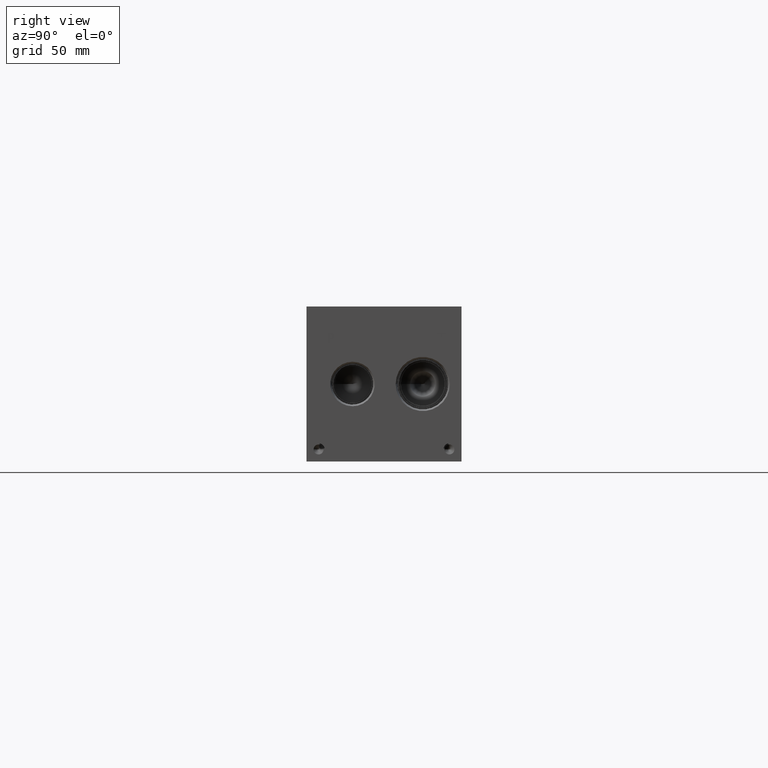
[diagram: clean part render]
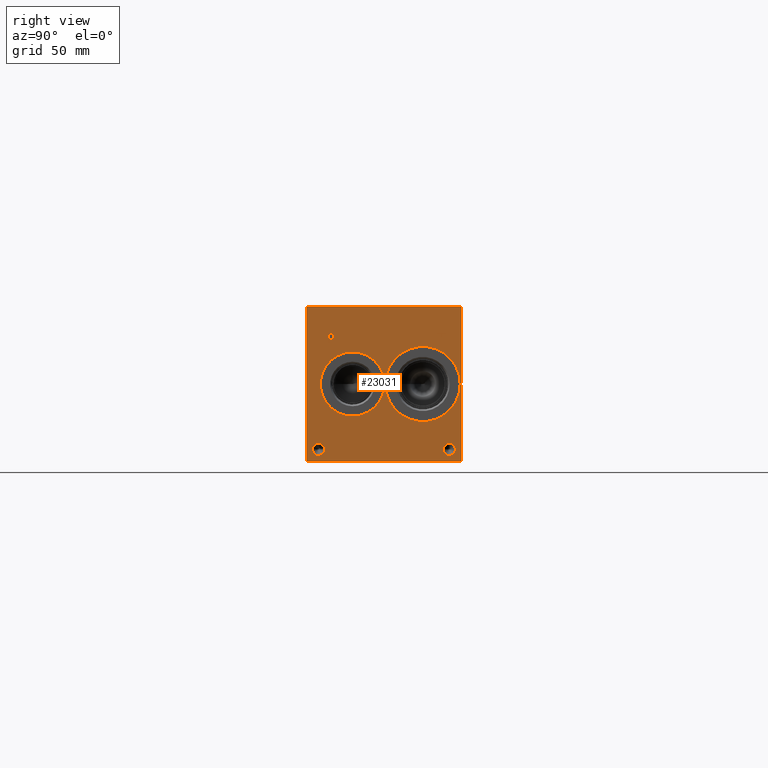
[diagram: same view with one face highlighted and labeled with its STEP entity id]
A machine part, right view. The second image highlights one B-rep face of the part: STEP entity #23031.
In plain terms, the highlighted planar face has unit normal (1, 0, 0).
Its self-contained STEP definition (entity closure, byte-faithful):
#724=CIRCLE('',#24184,24.5618);
#725=CIRCLE('',#24185,24.5618);
#726=CIRCLE('',#24186,21.0185);
#727=CIRCLE('',#24187,21.0185);
#728=CIRCLE('',#24188,3.9624);
#729=CIRCLE('',#24189,3.9624);
#730=CIRCLE('',#24190,3.9624);
#731=CIRCLE('',#24191,3.9624);
#1904=B_SPLINE_CURVE_WITH_KNOTS('',2,(#36069,#36070,#36071,#36072),
 .UNSPECIFIED.,.F.,.F.,(3,1,3),(0.,1.,2.),.UNSPECIFIED.);
#1906=B_SPLINE_CURVE_WITH_KNOTS('',2,(#36090,#36091,#36092,#36093),
 .UNSPECIFIED.,.F.,.F.,(3,1,3),(0.,1.,2.),.UNSPECIFIED.);
#1908=B_SPLINE_CURVE_WITH_KNOTS('',2,(#36139,#36140,#36141,#36142),
 .UNSPECIFIED.,.F.,.F.,(3,1,3),(0.,1.,2.),.UNSPECIFIED.);
#1910=B_SPLINE_CURVE_WITH_KNOTS('',2,(#36157,#36158,#36159,#36160),
 .UNSPECIFIED.,.F.,.F.,(3,1,3),(0.,1.,2.),.UNSPECIFIED.);
#2165=FACE_BOUND('',#4090,.T.);
#2166=FACE_BOUND('',#4091,.T.);
#2167=FACE_BOUND('',#4092,.T.);
#2168=FACE_BOUND('',#4093,.T.);
#2169=FACE_BOUND('',#4094,.T.);
#2170=FACE_BOUND('',#4095,.T.);
#2765=FACE_OUTER_BOUND('',#4089,.T.);
#4089=EDGE_LOOP('',(#17071,#17072,#17073,#17074));
#4090=EDGE_LOOP('',(#17075,#17076));
#4091=EDGE_LOOP('',(#17077,#17078));
#4092=EDGE_LOOP('',(#17079,#17080));
#4093=EDGE_LOOP('',(#17081,#17082));
#4094=EDGE_LOOP('',(#17083,#17084,#17085,#17086,#17087,#17088,#17089,#17090));
#4095=EDGE_LOOP('',(#17091,#17092,#17093,#17094,#17095,#17096,#17097,#17098,
#17099));
#5156=LINE('',#31435,#7083);
#6032=LINE('',#36102,#7959);
#6035=LINE('',#36108,#7962);
#6038=LINE('',#36114,#7965);
#6041=LINE('',#36120,#7968);
#6044=LINE('',#36126,#7971);
#6048=LINE('',#36168,#7975);
#6049=LINE('',#36170,#7976);
#6050=LINE('',#36171,#7977);
#6051=LINE('',#36190,#7978);
#6052=LINE('',#36192,#7979);
#6053=LINE('',#36194,#7980);
#6054=LINE('',#36196,#7981);
#6055=LINE('',#36198,#7982);
#6056=LINE('',#36200,#7983);
#6057=LINE('',#36202,#7984);
#6058=LINE('',#36203,#7985);
#7083=VECTOR('',#25799,10.);
#7959=VECTOR('',#27227,10.);
#7962=VECTOR('',#27232,10.);
#7965=VECTOR('',#27237,10.);
#7968=VECTOR('',#27242,10.);
#7971=VECTOR('',#27247,10.);
#7975=VECTOR('',#27255,10.);
#7976=VECTOR('',#27256,10.);
#7977=VECTOR('',#27257,10.);
#7978=VECTOR('',#27274,10.);
#7979=VECTOR('',#27275,10.);
#7980=VECTOR('',#27276,10.);
#7981=VECTOR('',#27277,10.);
#7982=VECTOR('',#27278,10.);
#7983=VECTOR('',#27279,10.);
#7984=VECTOR('',#27280,10.);
#7985=VECTOR('',#27281,10.);
#8999=VERTEX_POINT('',#31432);
#9000=VERTEX_POINT('',#31434);
#9901=VERTEX_POINT('',#36067);
#9902=VERTEX_POINT('',#36068);
#9905=VERTEX_POINT('',#36089);
#9907=VERTEX_POINT('',#36101);
#9909=VERTEX_POINT('',#36107);
#9911=VERTEX_POINT('',#36113);
#9913=VERTEX_POINT('',#36119);
#9915=VERTEX_POINT('',#36125);
#9917=VERTEX_POINT('',#36138);
#9919=VERTEX_POINT('',#36167);
#9920=VERTEX_POINT('',#36169);
#9921=VERTEX_POINT('',#36172);
#9922=VERTEX_POINT('',#36173);
#9923=VERTEX_POINT('',#36176);
#9924=VERTEX_POINT('',#36177);
#9925=VERTEX_POINT('',#36180);
#9926=VERTEX_POINT('',#36181);
#9927=VERTEX_POINT('',#36184);
#9928=VERTEX_POINT('',#36185);
#9929=VERTEX_POINT('',#36188);
#9930=VERTEX_POINT('',#36189);
#9931=VERTEX_POINT('',#36191);
#9932=VERTEX_POINT('',#36193);
#9933=VERTEX_POINT('',#36195);
#9934=VERTEX_POINT('',#36197);
#9935=VERTEX_POINT('',#36199);
#9936=VERTEX_POINT('',#36201);
#11348=EDGE_CURVE('',#8999,#9000,#5156,.T.);
#12605=EDGE_CURVE('',#9901,#9902,#1904,.T.);
#12609=EDGE_CURVE('',#9905,#9901,#1906,.T.);
#12612=EDGE_CURVE('',#9907,#9905,#6032,.T.);
#12615=EDGE_CURVE('',#9909,#9907,#6035,.T.);
#12618=EDGE_CURVE('',#9911,#9909,#6038,.T.);
#12621=EDGE_CURVE('',#9913,#9911,#6041,.T.);
#12624=EDGE_CURVE('',#9915,#9913,#6044,.T.);
#12627=EDGE_CURVE('',#9917,#9915,#1908,.T.);
#12630=EDGE_CURVE('',#9902,#9917,#1910,.T.);
#12632=EDGE_CURVE('',#8999,#9919,#6048,.T.);
#12633=EDGE_CURVE('',#9919,#9920,#6049,.T.);
#12634=EDGE_CURVE('',#9000,#9920,#6050,.T.);
#12635=EDGE_CURVE('',#9921,#9922,#724,.T.);
#12636=EDGE_CURVE('',#9922,#9921,#725,.T.);
#12637=EDGE_CURVE('',#9923,#9924,#726,.T.);
#12638=EDGE_CURVE('',#9924,#9923,#727,.T.);
#12639=EDGE_CURVE('',#9925,#9926,#728,.T.);
#12640=EDGE_CURVE('',#9926,#9925,#729,.T.);
#12641=EDGE_CURVE('',#9927,#9928,#730,.T.);
#12642=EDGE_CURVE('',#9928,#9927,#731,.T.);
#12643=EDGE_CURVE('',#9929,#9930,#6051,.T.);
#12644=EDGE_CURVE('',#9930,#9931,#6052,.T.);
#12645=EDGE_CURVE('',#9931,#9932,#6053,.T.);
#12646=EDGE_CURVE('',#9932,#9933,#6054,.T.);
#12647=EDGE_CURVE('',#9933,#9934,#6055,.T.);
#12648=EDGE_CURVE('',#9934,#9935,#6056,.T.);
#12649=EDGE_CURVE('',#9935,#9936,#6057,.T.);
#12650=EDGE_CURVE('',#9936,#9929,#6058,.T.);
#17071=ORIENTED_EDGE('',*,*,#12632,.T.);
#17072=ORIENTED_EDGE('',*,*,#12633,.T.);
#17073=ORIENTED_EDGE('',*,*,#12634,.F.);
#17074=ORIENTED_EDGE('',*,*,#11348,.F.);
#17075=ORIENTED_EDGE('',*,*,#12635,.T.);
#17076=ORIENTED_EDGE('',*,*,#12636,.T.);
#17077=ORIENTED_EDGE('',*,*,#12637,.T.);
#17078=ORIENTED_EDGE('',*,*,#12638,.T.);
#17079=ORIENTED_EDGE('',*,*,#12639,.T.);
#17080=ORIENTED_EDGE('',*,*,#12640,.T.);
#17081=ORIENTED_EDGE('',*,*,#12641,.T.);
#17082=ORIENTED_EDGE('',*,*,#12642,.T.);
#17083=ORIENTED_EDGE('',*,*,#12643,.T.);
#17084=ORIENTED_EDGE('',*,*,#12644,.T.);
#17085=ORIENTED_EDGE('',*,*,#12645,.T.);
#17086=ORIENTED_EDGE('',*,*,#12646,.T.);
#17087=ORIENTED_EDGE('',*,*,#12647,.T.);
#17088=ORIENTED_EDGE('',*,*,#12648,.T.);
#17089=ORIENTED_EDGE('',*,*,#12649,.T.);
#17090=ORIENTED_EDGE('',*,*,#12650,.T.);
#17091=ORIENTED_EDGE('',*,*,#12605,.T.);
#17092=ORIENTED_EDGE('',*,*,#12630,.T.);
#17093=ORIENTED_EDGE('',*,*,#12627,.T.);
#17094=ORIENTED_EDGE('',*,*,#12624,.T.);
#17095=ORIENTED_EDGE('',*,*,#12621,.T.);
#17096=ORIENTED_EDGE('',*,*,#12618,.T.);
#17097=ORIENTED_EDGE('',*,*,#12615,.T.);
#17098=ORIENTED_EDGE('',*,*,#12612,.T.);
#17099=ORIENTED_EDGE('',*,*,#12609,.T.);
#21573=PLANE('',#24183);
#23031=ADVANCED_FACE('',(#2765,#2165,#2166,#2167,#2168,#2169,#2170),#21573,
 .T.);
#24183=AXIS2_PLACEMENT_3D('',#36166,#27253,#27254);
#24184=AXIS2_PLACEMENT_3D('',#36174,#27258,#27259);
#24185=AXIS2_PLACEMENT_3D('',#36175,#27260,#27261);
#24186=AXIS2_PLACEMENT_3D('',#36178,#27262,#27263);
#24187=AXIS2_PLACEMENT_3D('',#36179,#27264,#27265);
#24188=AXIS2_PLACEMENT_3D('',#36182,#27266,#27267);
#24189=AXIS2_PLACEMENT_3D('',#36183,#27268,#27269);
#24190=AXIS2_PLACEMENT_3D('',#36186,#27270,#27271);
#24191=AXIS2_PLACEMENT_3D('',#36187,#27272,#27273);
#25799=DIRECTION('',(0.,0.,1.));
#27227=DIRECTION('',(0.,1.,0.));
#27232=DIRECTION('',(0.,0.,1.));
#27237=DIRECTION('',(0.,-1.,0.));
#27242=DIRECTION('',(0.,0.,-1.));
#27247=DIRECTION('',(0.,-1.,0.));
#27253=DIRECTION('center_axis',(1.,0.,0.));
#27254=DIRECTION('ref_axis',(0.,1.,0.));
#27255=DIRECTION('',(0.,1.,0.));
#27256=DIRECTION('',(0.,0.,1.));
#27257=DIRECTION('',(0.,1.,0.));
#27258=DIRECTION('center_axis',(-1.,0.,0.));
#27259=DIRECTION('ref_axis',(0.,1.,0.));
#27260=DIRECTION('center_axis',(-1.,0.,0.));
#27261=DIRECTION('ref_axis',(0.,1.,0.));
#27262=DIRECTION('center_axis',(-1.,0.,0.));
#27263=DIRECTION('ref_axis',(0.,0.,-1.));
#27264=DIRECTION('center_axis',(-1.,0.,0.));
#27265=DIRECTION('ref_axis',(0.,0.,-1.));
#27266=DIRECTION('center_axis',(-1.,0.,0.));
#27267=DIRECTION('ref_axis',(0.,1.,0.));
#27268=DIRECTION('center_axis',(-1.,0.,0.));
#27269=DIRECTION('ref_axis',(0.,1.,0.));
#27270=DIRECTION('center_axis',(-1.,0.,0.));
#27271=DIRECTION('ref_axis',(0.,1.,0.));
#27272=DIRECTION('center_axis',(-1.,0.,0.));
#27273=DIRECTION('ref_axis',(0.,1.,0.));
#27274=DIRECTION('',(0.,-1.,0.));
#27275=DIRECTION('',(0.,0.,1.));
#27276=DIRECTION('',(0.,-1.,0.));
#27277=DIRECTION('',(0.,0.,1.));
#27278=DIRECTION('',(0.,1.,0.));
#27279=DIRECTION('',(0.,0.,-1.));
#27280=DIRECTION('',(0.,-1.,0.));
#27281=DIRECTION('',(0.,0.,-1.));
#31432=CARTESIAN_POINT('',(457.2,0.,0.));
#31434=CARTESIAN_POINT('',(457.2,0.,101.6));
#31435=CARTESIAN_POINT('',(457.2,0.,0.));
#36067=CARTESIAN_POINT('',(457.2,17.3117672023594,83.6777681439707));
#36068=CARTESIAN_POINT('',(457.2,18.068209654532,82.159737372604));
#36069=CARTESIAN_POINT('Ctrl Pts',(457.2,17.3117672023594,83.6777681439707));
#36070=CARTESIAN_POINT('Ctrl Pts',(457.2,17.6668320268486,83.4359123939564));
#36071=CARTESIAN_POINT('Ctrl Pts',(457.2,18.068209654532,82.6897616758269));
#36072=CARTESIAN_POINT('Ctrl Pts',(457.2,18.068209654532,82.159737372604));
#36089=CARTESIAN_POINT('',(457.2,15.6496521543883,84.0739999046326));
#36090=CARTESIAN_POINT('Ctrl Pts',(457.2,15.6496521543883,84.0739999046326));
#36091=CARTESIAN_POINT('Ctrl Pts',(457.2,16.2156975267624,84.0739999046326));
#36092=CARTESIAN_POINT('Ctrl Pts',(457.2,17.008161048086,83.8887486918556));
#36093=CARTESIAN_POINT('Ctrl Pts',(457.2,17.3117672023594,83.6777681439707));
#36101=CARTESIAN_POINT('',(457.2,14.0544333776978,84.0739999046326));
#36102=CARTESIAN_POINT('',(457.2,7.0272166888489,84.0739999046326));
#36107=CARTESIAN_POINT('',(457.2,14.0544333776978,77.724));
#36108=CARTESIAN_POINT('',(457.2,14.0544333776978,38.862));
#36113=CARTESIAN_POINT('',(457.2,14.8983555692373,77.724));
#36114=CARTESIAN_POINT('',(457.2,7.44917778461864,77.724));
#36119=CARTESIAN_POINT('',(457.2,14.8983555692373,80.0910988299279));
#36120=CARTESIAN_POINT('',(457.2,14.8983555692373,40.0455494149639));
#36125=CARTESIAN_POINT('',(457.2,15.6136310852372,80.0910988299279));
#36126=CARTESIAN_POINT('',(457.2,7.80681554261862,80.0910988299279));
#36138=CARTESIAN_POINT('',(457.2,17.5124560162011,80.7497698086904));
#36139=CARTESIAN_POINT('Ctrl Pts',(457.2,17.5124560162011,80.7497698086904));
#36140=CARTESIAN_POINT('Ctrl Pts',(457.2,17.1831205268198,80.4255801863307));
#36141=CARTESIAN_POINT('Ctrl Pts',(457.2,16.2928855320861,80.0910988299279));
#36142=CARTESIAN_POINT('Ctrl Pts',(457.2,15.6136310852372,80.0910988299279));
#36157=CARTESIAN_POINT('Ctrl Pts',(457.2,18.068209654532,82.159737372604));
#36158=CARTESIAN_POINT('Ctrl Pts',(457.2,18.068209654532,81.7480680108774));
#36159=CARTESIAN_POINT('Ctrl Pts',(457.2,17.7748952343018,81.0070631597695));
#36160=CARTESIAN_POINT('Ctrl Pts',(457.2,17.5124560162011,80.7497698086904));
#36166=CARTESIAN_POINT('Origin',(457.2,0.,0.));
#36167=CARTESIAN_POINT('',(457.2,101.6,0.));
#36168=CARTESIAN_POINT('',(457.2,0.,0.));
#36169=CARTESIAN_POINT('',(457.2,101.6,101.6));
#36170=CARTESIAN_POINT('',(457.2,101.6,0.));
#36171=CARTESIAN_POINT('',(457.2,0.,101.6));
#36172=CARTESIAN_POINT('',(457.2,100.7618,50.8));
#36173=CARTESIAN_POINT('',(457.2,51.6382,50.8));
#36174=CARTESIAN_POINT('Origin',(457.2,76.2,50.8));
#36175=CARTESIAN_POINT('Origin',(457.2,76.2,50.8));
#36176=CARTESIAN_POINT('',(457.2,30.1752,29.7815));
#36177=CARTESIAN_POINT('',(457.2,30.1752,71.8185));
#36178=CARTESIAN_POINT('Origin',(457.2,30.1752,50.8));
#36179=CARTESIAN_POINT('Origin',(457.2,30.1752,50.8));
#36180=CARTESIAN_POINT('',(457.2,11.8872,7.9248));
#36181=CARTESIAN_POINT('',(457.2,3.9624,7.9248));
#36182=CARTESIAN_POINT('Origin',(457.2,7.9248,7.9248));
#36183=CARTESIAN_POINT('Origin',(457.2,7.9248,7.9248));
#36184=CARTESIAN_POINT('',(457.2,97.6376,7.9248));
#36185=CARTESIAN_POINT('',(457.2,89.7128,7.9248));
#36186=CARTESIAN_POINT('Origin',(457.2,93.6752,7.9248));
#36187=CARTESIAN_POINT('Origin',(457.2,93.6752,7.9248));
#36188=CARTESIAN_POINT('',(457.2,88.821165271453,77.724));
#36189=CARTESIAN_POINT('',(457.2,87.9772430799135,77.724));
#36190=CARTESIAN_POINT('',(457.2,44.4105826357265,77.724));
#36191=CARTESIAN_POINT('',(457.2,87.9772430799135,83.3227033194815));
#36192=CARTESIAN_POINT('',(457.2,87.9772430799135,38.862));
#36193=CARTESIAN_POINT('',(457.2,85.8468541329784,83.3227033194815));
#36194=CARTESIAN_POINT('',(457.2,43.9886215399568,83.3227033194815));
#36195=CARTESIAN_POINT('',(457.2,85.8468541329784,84.0739999046326));
#36196=CARTESIAN_POINT('',(457.2,85.8468541329784,41.6613516597408));
#36197=CARTESIAN_POINT('',(457.2,90.9515542183881,84.0739999046326));
#36198=CARTESIAN_POINT('',(457.2,42.9234270664892,84.0739999046326));
#36199=CARTESIAN_POINT('',(457.2,90.9515542183881,83.3227033194815));
#36200=CARTESIAN_POINT('',(457.2,90.9515542183881,42.0369999523163));
#36201=CARTESIAN_POINT('',(457.2,88.821165271453,83.3227033194815));
#36202=CARTESIAN_POINT('',(457.2,45.475777109194,83.3227033194815));
#36203=CARTESIAN_POINT('',(457.2,88.821165271453,41.6613516597408));